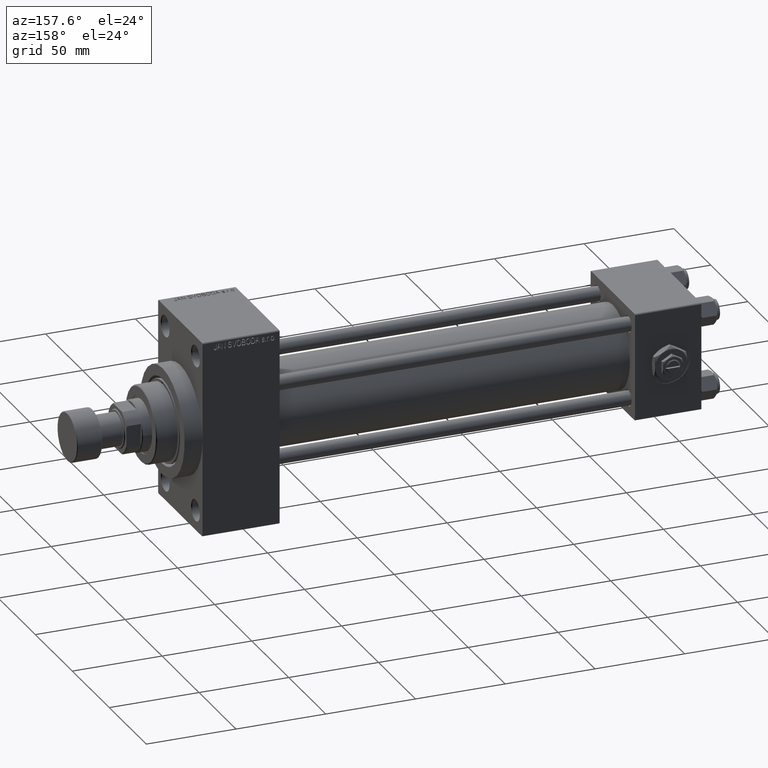
[diagram: clean part render]
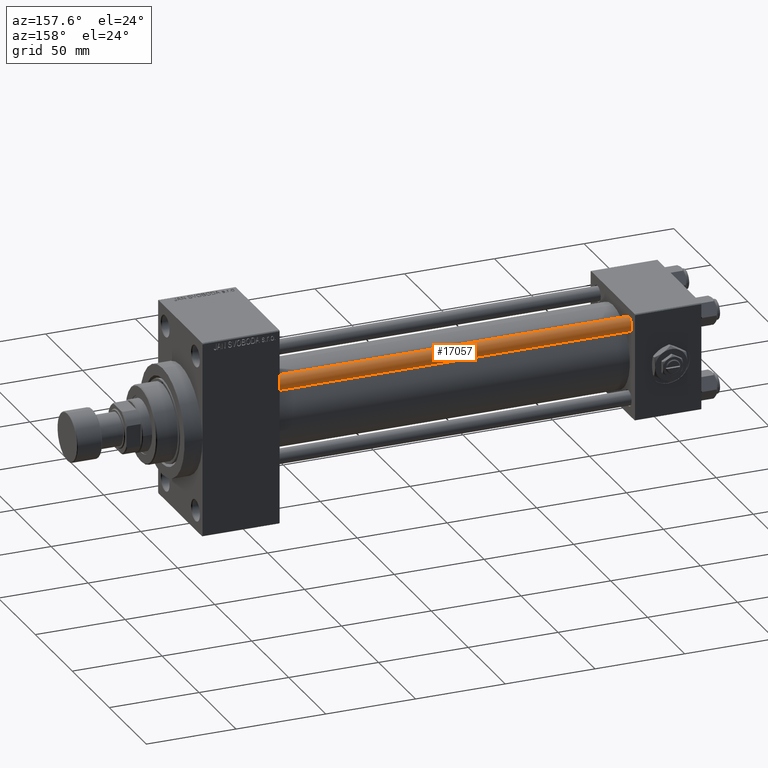
[diagram: same view with one face highlighted and labeled with its STEP entity id]
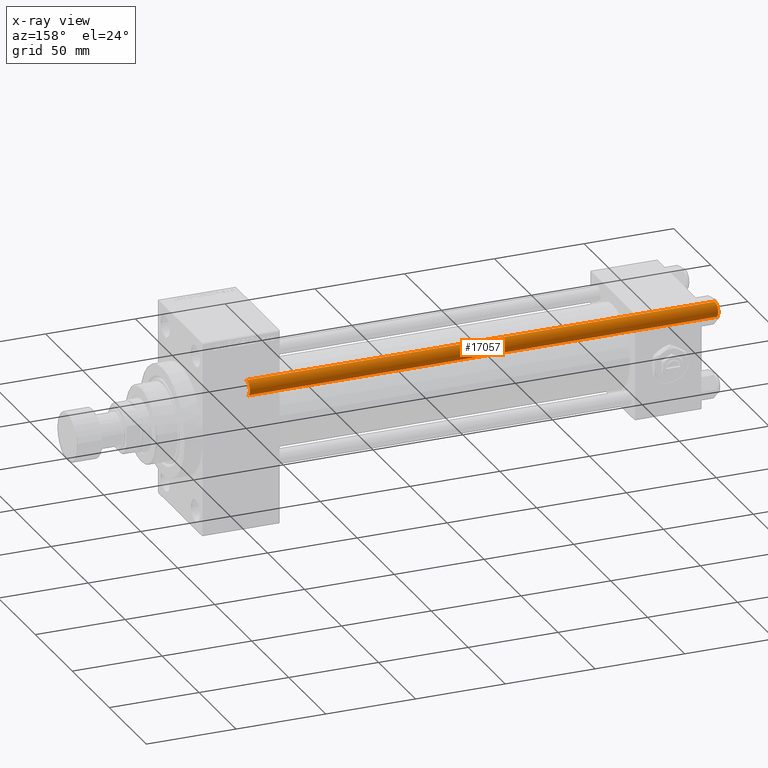
[diagram: x-ray of the same camera — body ghosted, the highlighted face saturated]
A machine part, auxiliary view. The second image highlights one B-rep face of the part: STEP entity #17057.
The next image is the same camera in x-ray: the body ghosted, the highlighted face saturated — about 0% of this face is hidden behind the body in this view.
In plain terms, the highlighted cylindrical surface (edge-blend (fillet) strip) has radius 4 mm, axis along (-1, -0, 0).
Its self-contained STEP definition (entity closure, byte-faithful):
#1234 = AXIS2_PLACEMENT_3D ( 'NONE', #9051, #17472, #11799 ) ;
#1756 = VERTEX_POINT ( 'NONE', #28228 ) ;
#3290 = CIRCLE ( 'NONE', #33629, 4.000000000000000000 ) ;
#8521 = DIRECTION ( 'NONE',  ( -0.000000000000000000, -0.000000000000000000, -1.000000000000000000 ) ) ;
#9051 = CARTESIAN_POINT ( 'NONE',  ( 0.000000000000000000, 0.000000000000000000, 262.0000000000000000 ) ) ;
#11799 = DIRECTION ( 'NONE',  ( -1.000000000000000000, 0.000000000000000000, 0.000000000000000000 ) ) ;
#12362 = CARTESIAN_POINT ( 'NONE',  ( 0.000000000000000000, 0.000000000000000000, 261.5000000000000000 ) ) ;
#13956 = VECTOR ( 'NONE', #8521, 1000.000000000000000 ) ;
#14875 = CARTESIAN_POINT ( 'NONE',  ( 4.000000000000000000, 4.898587196589412829E-16, 262.0000000000000000 ) ) ;
#15216 = VERTEX_POINT ( 'NONE', #36912 ) ;
#16610 = DIRECTION ( 'NONE',  ( 0.000000000000000000, 0.000000000000000000, -1.000000000000000000 ) ) ;
#17057 = ADVANCED_FACE ( 'NONE', ( #31814 ), #43346, .T. ) ;
#17082 = ORIENTED_EDGE ( 'NONE', *, *, #18430, .F. ) ;
#17357 = VERTEX_POINT ( 'NONE', #44937 ) ;
#17472 = DIRECTION ( 'NONE',  ( -0.000000000000000000, -0.000000000000000000, -1.000000000000000000 ) ) ;
#17525 = DIRECTION ( 'NONE',  ( -0.000000000000000000, -0.000000000000000000, 1.000000000000000000 ) ) ;
#18154 = ORIENTED_EDGE ( 'NONE', *, *, #36655, .T. ) ;
#18430 = EDGE_CURVE ( 'NONE', #15216, #17357, #46308, .T. ) ;
#21838 = EDGE_CURVE ( 'NONE', #1756, #33432, #29882, .T. ) ;
#23363 = EDGE_LOOP ( 'NONE', ( #18154, #34385, #44404, #17082 ) ) ;
#24057 = DIRECTION ( 'NONE',  ( 1.000000000000000000, 0.000000000000000000, 0.000000000000000000 ) ) ;
#25243 = VECTOR ( 'NONE', #26861, 1000.000000000000000 ) ;
#26861 = DIRECTION ( 'NONE',  ( -0.000000000000000000, -0.000000000000000000, -1.000000000000000000 ) ) ;
#28023 = CARTESIAN_POINT ( 'NONE',  ( -4.000000000000000000, 0.000000000000000000, 262.0000000000000000 ) ) ;
#28228 = CARTESIAN_POINT ( 'NONE',  ( 4.000000000000000000, 4.898587196589412829E-16, 261.5000000000000000 ) ) ;
#29882 = LINE ( 'NONE', #14875, #25243 ) ;
#30571 = CARTESIAN_POINT ( 'NONE',  ( 4.000000000000000000, 4.898587196589412829E-16, 0.5000000000000559552 ) ) ;
#31814 = FACE_OUTER_BOUND ( 'NONE', #23363, .T. ) ;
#32361 = DIRECTION ( 'NONE',  ( 1.000000000000000000, 0.000000000000000000, 0.000000000000000000 ) ) ;
#33432 = VERTEX_POINT ( 'NONE', #30571 ) ;
#33629 = AXIS2_PLACEMENT_3D ( 'NONE', #12362, #16610, #32361 ) ;
#34385 = ORIENTED_EDGE ( 'NONE', *, *, #21838, .T. ) ;
#34579 = EDGE_CURVE ( 'NONE', #33432, #17357, #39959, .T. ) ;
#36655 = EDGE_CURVE ( 'NONE', #15216, #1756, #3290, .T. ) ;
#36737 = AXIS2_PLACEMENT_3D ( 'NONE', #43804, #17525, #24057 ) ;
#36912 = CARTESIAN_POINT ( 'NONE',  ( -4.000000000000000000, 0.000000000000000000, 261.5000000000000000 ) ) ;
#39959 = CIRCLE ( 'NONE', #36737, 4.000000000000000000 ) ;
#43346 = CYLINDRICAL_SURFACE ( 'NONE', #1234, 4.000000000000000000 ) ;
#43804 = CARTESIAN_POINT ( 'NONE',  ( 0.000000000000000000, 0.000000000000000000, 0.5000000000000559552 ) ) ;
#44404 = ORIENTED_EDGE ( 'NONE', *, *, #34579, .T. ) ;
#44937 = CARTESIAN_POINT ( 'NONE',  ( -4.000000000000000000, 0.000000000000000000, 0.5000000000000559552 ) ) ;
#46308 = LINE ( 'NONE', #28023, #13956 ) ;